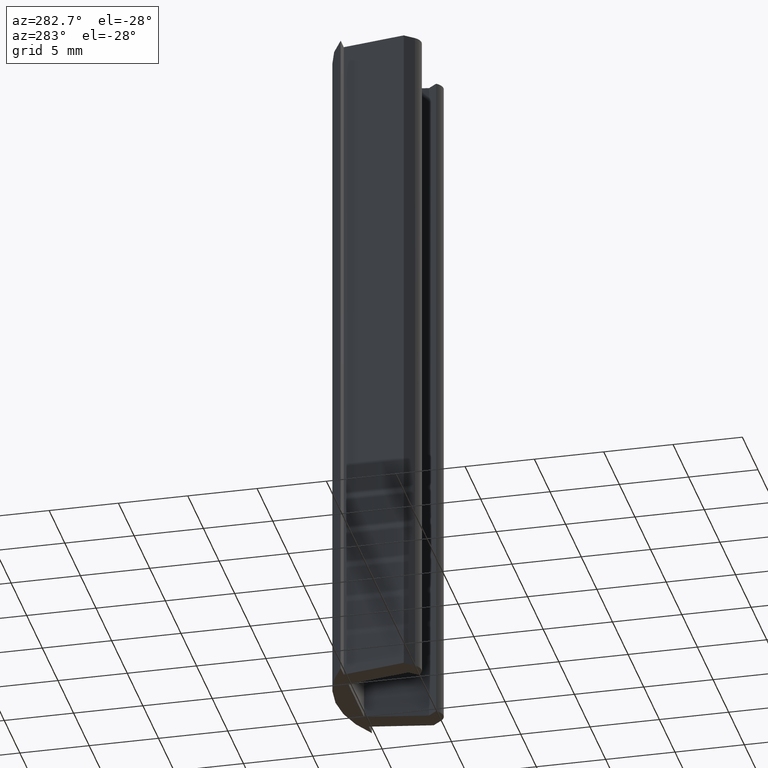
[diagram: clean part render]
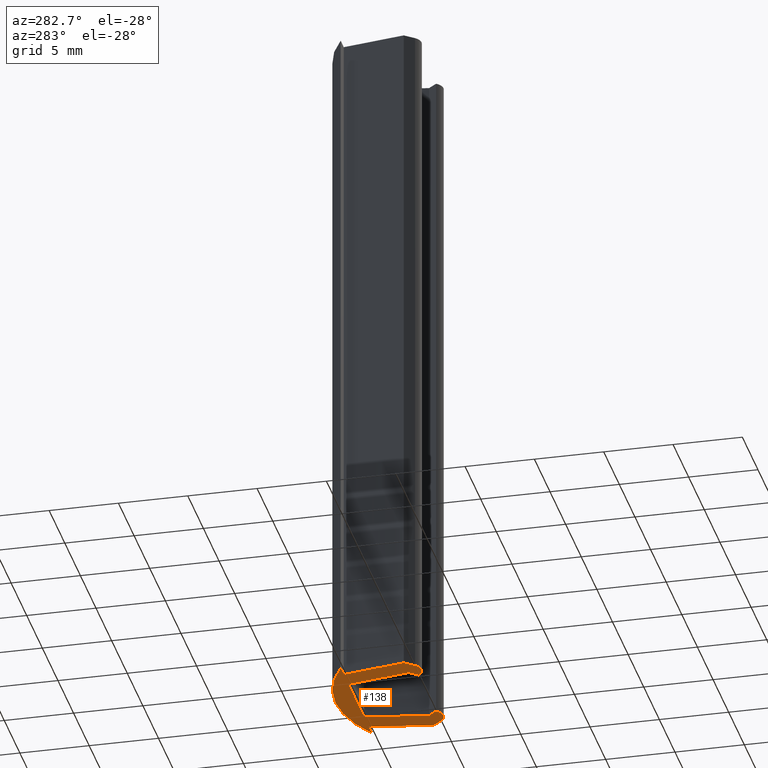
[diagram: same view with one face highlighted and labeled with its STEP entity id]
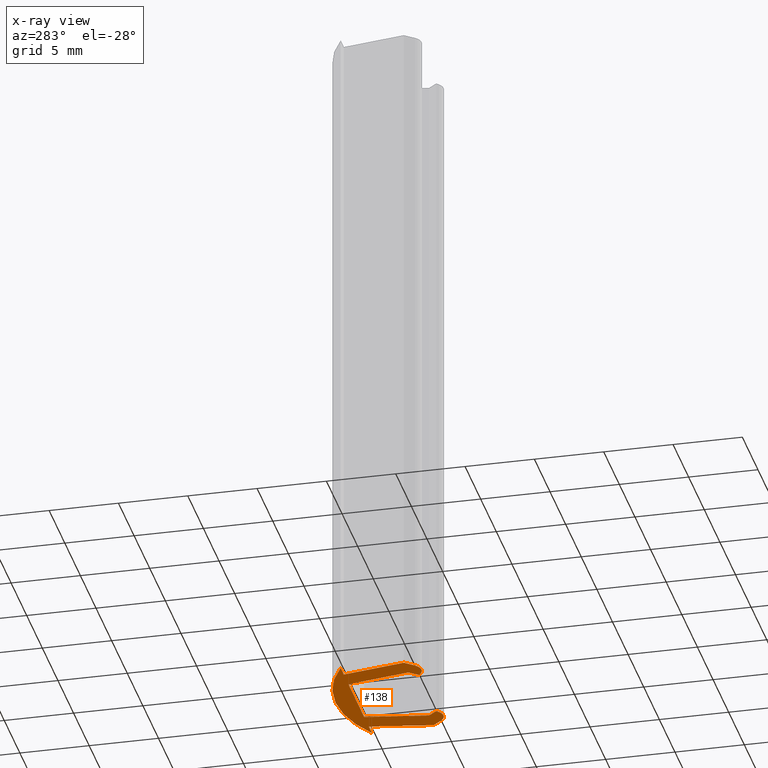
[diagram: x-ray of the same camera — body ghosted, the highlighted face saturated]
A machine part, auxiliary view. The second image highlights one B-rep face of the part: STEP entity #138.
The next image is the same camera in x-ray: the body ghosted, the highlighted face saturated — about 0% of this face is hidden behind the body in this view.
In plain terms, the highlighted planar face has unit normal (0, 0, -1).
Its self-contained STEP definition (entity closure, byte-faithful):
#7 = CARTESIAN_POINT ( 'NONE',  ( -0.8367053138553806100, 1.000000000813483900, 0.0000000000000000000 ) ) ;
#8 = CARTESIAN_POINT ( 'NONE',  ( 7.963294685841867200, 5.500000000000000000, 0.0000000000000000000 ) ) ;
#15 = CARTESIAN_POINT ( 'NONE',  ( -1.036705315469700400, 5.499999998997998900, 0.0000000000000000000 ) ) ;
#18 = CARTESIAN_POINT ( 'NONE',  ( 6.733580575902364800, 0.3669048108833120000, 0.0000000000000000000 ) ) ;
#19 = CARTESIAN_POINT ( 'NONE',  ( 1.463294687006839500, 5.499999998929228100, -8.673617379884035500E-016 ) ) ;
#20 = CARTESIAN_POINT ( 'NONE',  ( 8.763294684144618400, 0.9999999977825164700, 0.0000000000000000000 ) ) ;
#23 = CARTESIAN_POINT ( 'NONE',  ( 0.6632946842099405300, 1.000000002139414400, 0.0000000000000000000 ) ) ;
#30 = CARTESIAN_POINT ( 'NONE',  ( 6.463294684993158500, 5.499999998929228100, 0.0000000000000000000 ) ) ;
#33 = CARTESIAN_POINT ( 'NONE',  ( 7.263294687790059700, 1.000000002139414400, 0.0000000000000000000 ) ) ;
#35 = DIRECTION ( 'NONE',  ( -0.6417093793053494400, 0.7669478942611049900, 0.0000000000000000000 ) ) ;
#36 = CARTESIAN_POINT ( 'NONE',  ( -0.2632543360799998700, 0.3146320859640001100, 0.0000000000000000000 ) ) ;
#37 = CARTESIAN_POINT ( 'NONE',  ( 8.189843712769047100, 0.3146320893094646800, -1.734723475976807100E-015 ) ) ;
#38 = CARTESIAN_POINT ( 'NONE',  ( 1.193008794993660500, 0.3669048105073159400, 0.0000000000000000000 ) ) ;
#44 = CARTESIAN_POINT ( 'NONE',  ( -0.03670531404000108200, 5.499999997995998600, 0.0000000000000000000 ) ) ;
#45 = DIRECTION ( 'NONE',  ( 0.1750333347174945200, 0.9845625077859065900, 0.0000000000000000000 ) ) ;
#46 = CARTESIAN_POINT ( 'NONE',  ( -0.2632543211076045500, 0.3146320663425941600, 0.0000000000000000000 ) ) ;
#47 = CARTESIAN_POINT ( 'NONE',  ( -0.4367053140000000700, 3.250000000000000000, 0.0000000000000000000 ) ) ;
#52 = CARTESIAN_POINT ( 'NONE',  ( 8.963294685248413900, 5.500000000429616300, 0.0000000000000000000 ) ) ;
#68 = DIRECTION ( 'NONE',  ( 1.000000000000000000, 0.0000000000000000000, 0.0000000000000000000 ) ) ;
#69 = DIRECTION ( 'NONE',  ( -0.0000000000000000000, 0.0000000000000000000, -1.000000000000000000 ) ) ;
#70 = CARTESIAN_POINT ( 'NONE',  ( 7.483580575999998700, 0.9500000000000000700, 0.0000000000000000000 ) ) ;
#75 = DIRECTION ( 'NONE',  ( -0.6417093791478050100, -0.7669478943929233200, 0.0000000000000000000 ) ) ;
#76 = CARTESIAN_POINT ( 'NONE',  ( 7.963294686040000200, 5.499999997995998600, 0.0000000000000000000 ) ) ;
#78 = CARTESIAN_POINT ( 'NONE',  ( 8.476569198000000000, 0.6573160430000000200, 0.0000000000000000000 ) ) ;
#79 = DIRECTION ( 'NONE',  ( -1.000000000000000000, 0.0000000000000000000, 0.0000000000000000000 ) ) ;
#80 = CARTESIAN_POINT ( 'NONE',  ( 3.963294685999999800, 5.499999997995998600, 0.0000000000000000000 ) ) ;
#85 = DIRECTION ( 'NONE',  ( 0.6417093790113396200, -0.7669478945071045400, 0.0000000000000000000 ) ) ;
#86 = CARTESIAN_POINT ( 'NONE',  ( 0.9281517404999999300, 0.6834524055000000800, 0.0000000000000000000 ) ) ;
#89 = DIRECTION ( 'NONE',  ( 0.1750333338303418600, -0.9845625079436226600, 0.0000000000000000000 ) ) ;
#90 = DIRECTION ( 'NONE',  ( 1.000000000000000000, 0.0000000000000000000, 0.0000000000000000000 ) ) ;
#91 = DIRECTION ( 'NONE',  ( -0.0000000000000000000, 0.0000000000000000000, -1.000000000000000000 ) ) ;
#94 = CARTESIAN_POINT ( 'NONE',  ( 0.4430087950000001200, 0.9500000000000000700, 0.0000000000000000000 ) ) ;
#95 = DIRECTION ( 'NONE',  ( -0.1750333359766786100, -0.9845625075620516600, 0.0000000000000000000 ) ) ;
#96 = CARTESIAN_POINT ( 'NONE',  ( 1.463294687239998800, 5.499999997995998600, 0.0000000000000000000 ) ) ;
#100 = DIRECTION ( 'NONE',  ( -0.1750333359766791700, 0.9845625075620515500, 0.0000000000000000000 ) ) ;
#104 = DIRECTION ( 'NONE',  ( -1.000000000000000000, 0.0000000000000000000, 0.0000000000000000000 ) ) ;
#105 = CARTESIAN_POINT ( 'NONE',  ( 7.263294690839999600, 0.9999999971920000600, 0.0000000000000000000 ) ) ;
#106 = CARTESIAN_POINT ( 'NONE',  ( 3.963294685999999800, 5.499999997995998600, 0.0000000000000000000 ) ) ;
#138 = ADVANCED_FACE ( 'NONE', ( #238 ), #547, .T. ) ;
#142 = EDGE_CURVE ( 'NONE', #231, #207, #242, .T. ) ;
#147 = EDGE_CURVE ( 'NONE', #197, #189, #448, .T. ) ;
#148 = EDGE_CURVE ( 'NONE', #202, #231, #431, .T. ) ;
#152 = EDGE_CURVE ( 'NONE', #207, #194, #415, .T. ) ;
#155 = EDGE_CURVE ( 'NONE', #189, #192, #247, .T. ) ;
#157 = EDGE_CURVE ( 'NONE', #211, #212, #270, .T. ) ;
#158 = EDGE_CURVE ( 'NONE', #195, #211, #266, .T. ) ;
#163 = EDGE_CURVE ( 'NONE', #219, #202, #339, .T. ) ;
#166 = EDGE_CURVE ( 'NONE', #193, #195, #334, .T. ) ;
#171 = EDGE_CURVE ( 'NONE', #192, #193, #277, .T. ) ;
#172 = EDGE_CURVE ( 'NONE', #194, #187, #279, .T. ) ;
#175 = EDGE_CURVE ( 'NONE', #187, #197, #323, .T. ) ;
#187 = VERTEX_POINT ( 'NONE', #37 ) ;
#189 = VERTEX_POINT ( 'NONE', #33 ) ;
#192 = VERTEX_POINT ( 'NONE', #30 ) ;
#193 = VERTEX_POINT ( 'NONE', #19 ) ;
#194 = VERTEX_POINT ( 'NONE', #20 ) ;
#195 = VERTEX_POINT ( 'NONE', #23 ) ;
#197 = VERTEX_POINT ( 'NONE', #18 ) ;
#202 = VERTEX_POINT ( 'NONE', #15 ) ;
#203 = VERTEX_POINT ( 'NONE', #7 ) ;
#207 = VERTEX_POINT ( 'NONE', #8 ) ;
#211 = VERTEX_POINT ( 'NONE', #38 ) ;
#212 = VERTEX_POINT ( 'NONE', #46 ) ;
#219 = VERTEX_POINT ( 'NONE', #44 ) ;
#231 = VERTEX_POINT ( 'NONE', #52 ) ;
#238 = FACE_OUTER_BOUND ( 'NONE', #396, .T. ) ;
#241 = VECTOR ( 'NONE', #562, 1000.000000000000000 ) ;
#242 = LINE ( 'NONE', #557, #241 ) ;
#247 = LINE ( 'NONE', #105, #346 ) ;
#260 = VECTOR ( 'NONE', #45, 1000.000000000000200 ) ;
#266 = LINE ( 'NONE', #86, #347 ) ;
#270 = CIRCLE ( 'NONE', #506, 0.9499999999999997300 ) ;
#274 = LINE ( 'NONE', #47, #260 ) ;
#277 = LINE ( 'NONE', #80, #278 ) ;
#278 = VECTOR ( 'NONE', #79, 1000.000000000000000 ) ;
#279 = LINE ( 'NONE', #78, #280 ) ;
#280 = VECTOR ( 'NONE', #75, 1000.000000000000200 ) ;
#313 = VECTOR ( 'NONE', #35, 1000.000000000000000 ) ;
#315 = LINE ( 'NONE', #36, #313 ) ;
#323 = CIRCLE ( 'NONE', #505, 0.9500000000000038400 ) ;
#334 = LINE ( 'NONE', #96, #335 ) ;
#335 = VECTOR ( 'NONE', #95, 1000.000000000000200 ) ;
#337 = VECTOR ( 'NONE', #104, 1000.000000000000000 ) ;
#339 = LINE ( 'NONE', #106, #337 ) ;
#346 = VECTOR ( 'NONE', #100, 1000.000000000000100 ) ;
#347 = VECTOR ( 'NONE', #85, 1000.000000000000000 ) ;
#348 = ORIENTED_EDGE ( 'NONE', *, *, #510, .T. ) ;
#363 = ORIENTED_EDGE ( 'NONE', *, *, #142, .T. ) ;
#364 = ORIENTED_EDGE ( 'NONE', *, *, #152, .T. ) ;
#365 = ORIENTED_EDGE ( 'NONE', *, *, #172, .T. ) ;
#366 = ORIENTED_EDGE ( 'NONE', *, *, #175, .T. ) ;
#367 = ORIENTED_EDGE ( 'NONE', *, *, #147, .T. ) ;
#368 = ORIENTED_EDGE ( 'NONE', *, *, #155, .T. ) ;
#385 = ORIENTED_EDGE ( 'NONE', *, *, #496, .T. ) ;
#386 = ORIENTED_EDGE ( 'NONE', *, *, #163, .T. ) ;
#396 = EDGE_LOOP ( 'NONE', ( #404, #405, #407, #406, #348, #385, #386, #451, #363, #364, #365, #366, #367, #368 ) ) ;
#404 = ORIENTED_EDGE ( 'NONE', *, *, #171, .T. ) ;
#405 = ORIENTED_EDGE ( 'NONE', *, *, #166, .T. ) ;
#406 = ORIENTED_EDGE ( 'NONE', *, *, #157, .T. ) ;
#407 = ORIENTED_EDGE ( 'NONE', *, *, #158, .T. ) ;
#413 = VECTOR ( 'NONE', #89, 1000.000000000000200 ) ;
#415 = LINE ( 'NONE', #76, #413 ) ;
#431 = CIRCLE ( 'NONE', #498, 9.083333333000000600 ) ;
#441 = VECTOR ( 'NONE', #561, 1000.000000000000000 ) ;
#448 = LINE ( 'NONE', #563, #441 ) ;
#451 = ORIENTED_EDGE ( 'NONE', *, *, #148, .T. ) ;
#494 = AXIS2_PLACEMENT_3D ( 'NONE', #548, #549, #550 ) ;
#496 = EDGE_CURVE ( 'NONE', #203, #219, #274, .T. ) ;
#498 = AXIS2_PLACEMENT_3D ( 'NONE', #560, #559, #558 ) ;
#505 = AXIS2_PLACEMENT_3D ( 'NONE', #70, #69, #68 ) ;
#506 = AXIS2_PLACEMENT_3D ( 'NONE', #94, #91, #90 ) ;
#510 = EDGE_CURVE ( 'NONE', #212, #203, #315, .T. ) ;
#547 = PLANE ( 'NONE',  #494 ) ;
#548 = CARTESIAN_POINT ( 'NONE',  ( 9.023294685999999800, -0.04200000000000001000, 0.0000000000000000000 ) ) ;
#549 = DIRECTION ( 'NONE',  ( 0.0000000000000000000, 0.0000000000000000000, -1.000000000000000000 ) ) ;
#550 = DIRECTION ( 'NONE',  ( -1.000000000000000000, 0.0000000000000000000, 0.0000000000000000000 ) ) ;
#557 = CARTESIAN_POINT ( 'NONE',  ( 8.463294686000001100, 5.500000000000000000, 0.0000000000000000000 ) ) ;
#558 = DIRECTION ( 'NONE',  ( 1.000000000000000000, 0.0000000000000000000, 0.0000000000000000000 ) ) ;
#559 = DIRECTION ( 'NONE',  ( -0.0000000000000000000, -0.0000000000000000000, -1.000000000000000000 ) ) ;
#560 = CARTESIAN_POINT ( 'NONE',  ( 3.963294686000000700, -2.083333333000000100, 0.0000000000000000000 ) ) ;
#561 = DIRECTION ( 'NONE',  ( 0.6417093797239122900, 0.7669478939108912400, 0.0000000000000000000 ) ) ;
#562 = DIRECTION ( 'NONE',  ( -1.000000000000000000, -0.0000000000000000000, -0.0000000000000000000 ) ) ;
#563 = CARTESIAN_POINT ( 'NONE',  ( 6.998437630999998900, 0.6834524055000000800, 0.0000000000000000000 ) ) ;